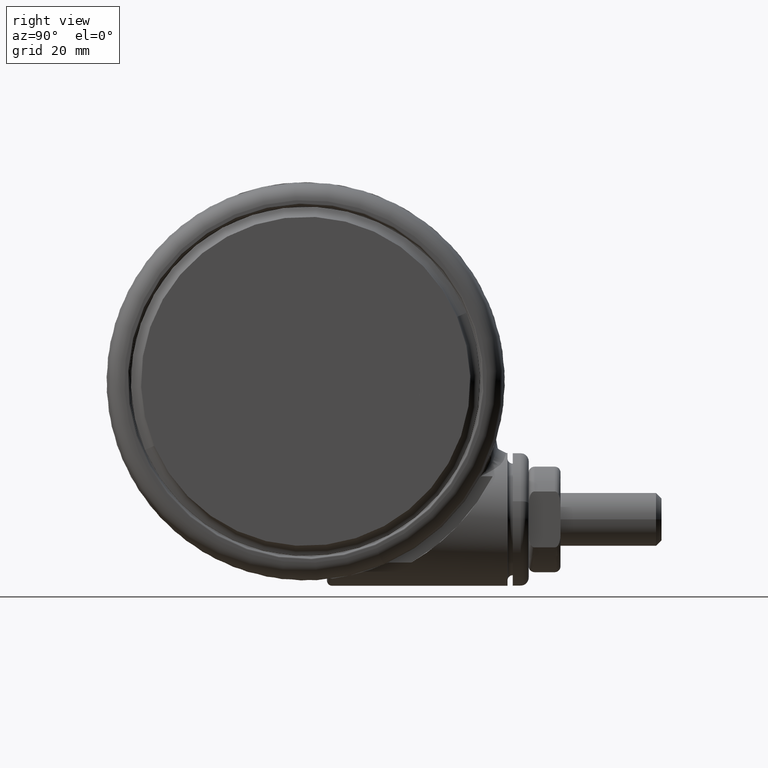
[diagram: clean part render]
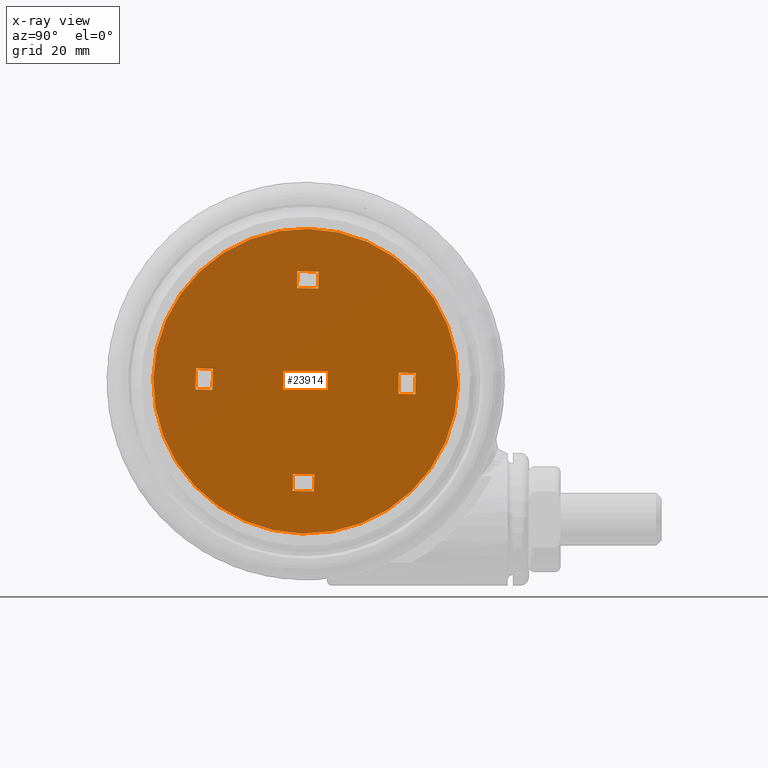
[diagram: x-ray — body ghosted, one internal face saturated and labeled with its STEP entity id]
A machine part, right view, then the same camera in x-ray: the body is ghosted and one INTERNAL B-rep face — a face not visible from any outside direction — is saturated and labeled: STEP entity #23914.
In plain terms, the highlighted planar face has unit normal (-1, 0, 0).
Its self-contained STEP definition (entity closure, byte-faithful):
#270 = FACE_BOUND ( 'NONE', #7125, .T. ) ;
#756 = VECTOR ( 'NONE', #2715, 1000.000000000000100 ) ;
#886 = DIRECTION ( 'NONE',  ( 0.4119530739487650100, 0.9112050619175484600, 0.0000000000000000000 ) ) ;
#963 = DIRECTION ( 'NONE',  ( -0.4119530739487678500, -0.9112050619175471300, 0.0000000000000000000 ) ) ;
#1714 = FACE_BOUND ( 'NONE', #34620, .T. ) ;
#1766 = EDGE_CURVE ( 'NONE', #53484, #48081, #2220, .T. ) ;
#2220 = LINE ( 'NONE', #38142, #47058 ) ;
#2500 = LINE ( 'NONE', #56258, #24878 ) ;
#2518 = CARTESIAN_POINT ( 'NONE',  ( 18.77464586767321500, -6.293065432955616600, -46.19999999999985400 ) ) ;
#2715 = DIRECTION ( 'NONE',  ( -0.9112050619175485800, 0.4119530739487646800, 0.0000000000000000000 ) ) ;
#2999 = ORIENTED_EDGE ( 'NONE', *, *, #25783, .T. ) ;
#4928 = CARTESIAN_POINT ( 'NONE',  ( -2.081668171172168500E-014, -4.163336342344337000E-014, -46.19999999999985400 ) ) ;
#5888 = EDGE_CURVE ( 'NONE', #15767, #36712, #53848, .T. ) ;
#6678 = VECTOR ( 'NONE', #29904, 1000.000000000000100 ) ;
#6944 = DIRECTION ( 'NONE',  ( -0.9112050619175485800, 0.4119530739487646800, 0.0000000000000000000 ) ) ;
#6985 = LINE ( 'NONE', #24503, #29391 ) ;
#7125 = EDGE_LOOP ( 'NONE', ( #48325, #25390, #19358, #2999 ) ) ;
#7928 = CARTESIAN_POINT ( 'NONE',  ( -11.82305322232957500, -26.15158527703368600, -46.19999999999985400 ) ) ;
#8159 = VECTOR ( 'NONE', #23845, 1000.000000000000100 ) ;
#8703 = EDGE_LOOP ( 'NONE', ( #55775, #50479, #37197, #31024 ) ) ;
#8927 = VECTOR ( 'NONE', #21891, 1000.000000000000100 ) ;
#8977 = VERTEX_POINT ( 'NONE', #49196 ) ;
#9422 = DIRECTION ( 'NONE',  ( 0.4119530739487650100, 0.9112050619175484600, 0.0000000000000000000 ) ) ;
#9743 = VECTOR ( 'NONE', #23494, 1000.000000000000100 ) ;
#10176 = EDGE_CURVE ( 'NONE', #56504, #13779, #40125, .T. ) ;
#10197 = CARTESIAN_POINT ( 'NONE',  ( 5.386768670268434500, 16.76999473145451700, -46.19999999999985400 ) ) ;
#11004 = ORIENTED_EDGE ( 'NONE', *, *, #31274, .T. ) ;
#11280 = CARTESIAN_POINT ( 'NONE',  ( 15.12218243565955200, -9.031588917938528000, -46.19999999999985400 ) ) ;
#11541 = EDGE_CURVE ( 'NONE', #15500, #36712, #42414, .T. ) ;
#11754 = LINE ( 'NONE', #12873, #8927 ) ;
#11943 = VECTOR ( 'NONE', #20105, 1000.000000000000100 ) ;
#12219 = FACE_BOUND ( 'NONE', #20004, .T. ) ;
#12732 = CARTESIAN_POINT ( 'NONE',  ( 6.705018506904514700, 19.68585092959065400, -46.19999999999985400 ) ) ;
#12873 = CARTESIAN_POINT ( 'NONE',  ( -18.03803863379574300, 10.34983875457449200, -46.19999999999985400 ) ) ;
#13212 = EDGE_CURVE ( 'NONE', #45808, #57971, #47139, .T. ) ;
#13779 = VERTEX_POINT ( 'NONE', #7928 ) ;
#13888 = VERTEX_POINT ( 'NONE', #44500 ) ;
#15012 = CARTESIAN_POINT ( 'NONE',  ( 10.34983875457470900, 18.03803863379559000, -46.19999999999985400 ) ) ;
#15325 = AXIS2_PLACEMENT_3D ( 'NONE', #4928, #36215, #9422 ) ;
#15500 = VERTEX_POINT ( 'NONE', #37248 ) ;
#15623 = ORIENTED_EDGE ( 'NONE', *, *, #58083, .F. ) ;
#15767 = VERTEX_POINT ( 'NONE', #57756 ) ;
#15917 = ORIENTED_EDGE ( 'NONE', *, *, #52695, .F. ) ;
#16519 = EDGE_CURVE ( 'NONE', #15767, #18680, #11754, .T. ) ;
#16743 = VERTEX_POINT ( 'NONE', #15012 ) ;
#17671 = LINE ( 'NONE', #54581, #51988 ) ;
#18080 = CARTESIAN_POINT ( 'NONE',  ( 5.386768670268434500, 16.76999473145451700, -46.19999999999985400 ) ) ;
#18655 = LINE ( 'NONE', #19346, #8159 ) ;
#18680 = VERTEX_POINT ( 'NONE', #26690 ) ;
#19346 = CARTESIAN_POINT ( 'NONE',  ( -5.386768670268367000, -16.76999473145464800, -46.19999999999985400 ) ) ;
#19358 = ORIENTED_EDGE ( 'NONE', *, *, #13212, .F. ) ;
#19760 = VECTOR ( 'NONE', #56149, 1000.000000000000100 ) ;
#20004 = EDGE_LOOP ( 'NONE', ( #35195, #26978, #15623, #37331 ) ) ;
#20098 = LINE ( 'NONE', #55224, #31980 ) ;
#20105 = DIRECTION ( 'NONE',  ( -0.9112050619175470200, 0.4119530739487681800, -0.0000000000000000000 ) ) ;
#20973 = EDGE_CURVE ( 'NONE', #23677, #33117, #33541, .T. ) ;
#21736 = CARTESIAN_POINT ( 'NONE',  ( 10.34983875457470900, 18.03803863379559000, -46.19999999999985400 ) ) ;
#21891 = DIRECTION ( 'NONE',  ( 0.4119530739487650100, 0.9112050619175484600, -0.0000000000000000000 ) ) ;
#23494 = DIRECTION ( 'NONE',  ( -0.9112050619175442500, 0.4119530739487745600, -0.0000000000000000000 ) ) ;
#23677 = VERTEX_POINT ( 'NONE', #28202 ) ;
#23845 = DIRECTION ( 'NONE',  ( 0.9112050619175470200, -0.4119530739487681800, -0.0000000000000000000 ) ) ;
#23914 = ADVANCED_FACE ( 'NONE', ( #25511, #12219, #1714, #270, #46537 ), #52640, .F. ) ;
#23919 = DIRECTION ( 'NONE',  ( 0.4119530739487742300, 0.9112050619175443600, 0.0000000000000000000 ) ) ;
#23964 = CARTESIAN_POINT ( 'NONE',  ( -5.386768670268367000, -16.76999473145464800, -46.19999999999985400 ) ) ;
#23972 = EDGE_CURVE ( 'NONE', #44358, #16743, #31798, .T. ) ;
#24503 = CARTESIAN_POINT ( 'NONE',  ( 17.12683357187815500, -9.937885680625809600, -46.19999999999985400 ) ) ;
#24683 = DIRECTION ( 'NONE',  ( 0.9112050619175485800, -0.4119530739487646800, 0.0000000000000000000 ) ) ;
#24758 = CARTESIAN_POINT ( 'NONE',  ( -10.34983875457461800, -18.03803863379573600, -46.19999999999985400 ) ) ;
#24878 = VECTOR ( 'NONE', #6944, 1000.000000000000100 ) ;
#24969 = EDGE_CURVE ( 'NONE', #13779, #56504, #43619, .T. ) ;
#25025 = ORIENTED_EDGE ( 'NONE', *, *, #43277, .F. ) ;
#25390 = ORIENTED_EDGE ( 'NONE', *, *, #57486, .T. ) ;
#25511 = FACE_OUTER_BOUND ( 'NONE', #35321, .T. ) ;
#25599 = CARTESIAN_POINT ( 'NONE',  ( -6.293065432955654800, -18.77464586767325000, -46.19999999999985400 ) ) ;
#25783 = EDGE_CURVE ( 'NONE', #45808, #8977, #35724, .T. ) ;
#25812 = DIRECTION ( 'NONE',  ( 0.0000000000000000000, 0.0000000000000000000, -1.000000000000000000 ) ) ;
#26690 = CARTESIAN_POINT ( 'NONE',  ( -18.03803863379574300, 10.34983875457449200, -46.19999999999985400 ) ) ;
#26978 = ORIENTED_EDGE ( 'NONE', *, *, #16519, .T. ) ;
#26991 = CARTESIAN_POINT ( 'NONE',  ( -9.031588917938561800, -15.12218243565958900, -46.19999999999985400 ) ) ;
#27088 = ORIENTED_EDGE ( 'NONE', *, *, #1766, .T. ) ;
#27698 = DIRECTION ( 'NONE',  ( -0.0000000000000000000, -0.0000000000000000000, 1.000000000000000000 ) ) ;
#28202 = CARTESIAN_POINT ( 'NONE',  ( 9.031588917938629300, 15.12218243565945600, -46.19999999999985400 ) ) ;
#28941 = DIRECTION ( 'NONE',  ( 0.9112050619175485800, -0.4119530739487646800, 0.0000000000000000000 ) ) ;
#29391 = VECTOR ( 'NONE', #24683, 1000.000000000000100 ) ;
#29684 = VERTEX_POINT ( 'NONE', #26991 ) ;
#29861 = CARTESIAN_POINT ( 'NONE',  ( 6.293065432955740100, 18.77464586767311200, -46.19999999999985400 ) ) ;
#29871 = AXIS2_PLACEMENT_3D ( 'NONE', #47967, #25812, #57146 ) ;
#29904 = DIRECTION ( 'NONE',  ( -0.4119530739487650100, -0.9112050619175484600, -0.0000000000000000000 ) ) ;
#30058 = VECTOR ( 'NONE', #28941, 1000.000000000000100 ) ;
#30302 = DIRECTION ( 'NONE',  ( 0.4119530739487678500, 0.9112050619175471300, 0.0000000000000000000 ) ) ;
#31024 = ORIENTED_EDGE ( 'NONE', *, *, #23972, .T. ) ;
#31070 = EDGE_CURVE ( 'NONE', #29684, #8977, #17671, .T. ) ;
#31274 = EDGE_CURVE ( 'NONE', #13888, #40494, #54052, .T. ) ;
#31798 = LINE ( 'NONE', #21736, #55614 ) ;
#31980 = VECTOR ( 'NONE', #23919, 1000.000000000000100 ) ;
#32567 = CARTESIAN_POINT ( 'NONE',  ( 11.82305322232953600, 26.15158527703360400, -46.19999999999985400 ) ) ;
#33117 = VERTEX_POINT ( 'NONE', #18080 ) ;
#33541 = LINE ( 'NONE', #10197, #9743 ) ;
#33650 = LINE ( 'NONE', #29861, #50433 ) ;
#33798 = VECTOR ( 'NONE', #30302, 1000.000000000000100 ) ;
#34154 = DIRECTION ( 'NONE',  ( -0.4119530739487742300, -0.9112050619175443600, 0.0000000000000000000 ) ) ;
#34620 = EDGE_LOOP ( 'NONE', ( #25025, #11004, #15917, #27088 ) ) ;
#35195 = ORIENTED_EDGE ( 'NONE', *, *, #5888, .F. ) ;
#35321 = EDGE_LOOP ( 'NONE', ( #56959, #39720 ) ) ;
#35724 = LINE ( 'NONE', #24758, #11943 ) ;
#36215 = DIRECTION ( 'NONE',  ( -0.0000000000000000000, -0.0000000000000000000, 1.000000000000000000 ) ) ;
#36484 = LINE ( 'NONE', #2518, #756 ) ;
#36712 = VERTEX_POINT ( 'NONE', #44575 ) ;
#37153 = AXIS2_PLACEMENT_3D ( 'NONE', #54510, #27698, #886 ) ;
#37197 = ORIENTED_EDGE ( 'NONE', *, *, #52189, .F. ) ;
#37248 = CARTESIAN_POINT ( 'NONE',  ( -15.12218243565959200, 9.031588917938444500, -46.19999999999985400 ) ) ;
#37331 = ORIENTED_EDGE ( 'NONE', *, *, #11541, .T. ) ;
#37398 = DIRECTION ( 'NONE',  ( 0.4119530739487650100, 0.9112050619175484600, -0.0000000000000000000 ) ) ;
#38142 = CARTESIAN_POINT ( 'NONE',  ( 16.76999473145461300, -5.386768670268334200, -46.19999999999985400 ) ) ;
#39720 = ORIENTED_EDGE ( 'NONE', *, *, #24969, .T. ) ;
#39992 = EDGE_CURVE ( 'NONE', #23677, #16743, #20098, .T. ) ;
#40125 = CIRCLE ( 'NONE', #37153, 28.70000000000000300 ) ;
#40494 = VERTEX_POINT ( 'NONE', #55934 ) ;
#42414 = LINE ( 'NONE', #56724, #6678 ) ;
#42852 = CARTESIAN_POINT ( 'NONE',  ( 18.03803863379570400, -10.34983875457457500, -46.19999999999985400 ) ) ;
#43277 = EDGE_CURVE ( 'NONE', #13888, #48081, #36484, .T. ) ;
#43619 = CIRCLE ( 'NONE', #15325, 28.70000000000000300 ) ;
#44358 = VERTEX_POINT ( 'NONE', #12732 ) ;
#44500 = CARTESIAN_POINT ( 'NONE',  ( 19.68585092959076400, -6.705018506904381500, -46.19999999999985400 ) ) ;
#44575 = CARTESIAN_POINT ( 'NONE',  ( -16.76999473145465200, 5.386768670268250700, -46.19999999999985400 ) ) ;
#45808 = VERTEX_POINT ( 'NONE', #49496 ) ;
#46537 = FACE_BOUND ( 'NONE', #8703, .T. ) ;
#47058 = VECTOR ( 'NONE', #37398, 1000.000000000000100 ) ;
#47139 = LINE ( 'NONE', #25599, #33798 ) ;
#47967 = CARTESIAN_POINT ( 'NONE',  ( -2.081668171172168500E-014, -4.163336342344337000E-014, -46.19999999999985400 ) ) ;
#48081 = VERTEX_POINT ( 'NONE', #50957 ) ;
#48325 = ORIENTED_EDGE ( 'NONE', *, *, #31070, .F. ) ;
#48343 = DIRECTION ( 'NONE',  ( 0.9112050619175442500, -0.4119530739487745600, -0.0000000000000000000 ) ) ;
#49196 = CARTESIAN_POINT ( 'NONE',  ( -10.34983875457461800, -18.03803863379573600, -46.19999999999985400 ) ) ;
#49496 = CARTESIAN_POINT ( 'NONE',  ( -6.705018506904424100, -19.68585092959079900, -46.19999999999985400 ) ) ;
#50433 = VECTOR ( 'NONE', #34154, 1000.000000000000100 ) ;
#50479 = ORIENTED_EDGE ( 'NONE', *, *, #20973, .T. ) ;
#50957 = CARTESIAN_POINT ( 'NONE',  ( 16.76999473145461300, -5.386768670268334200, -46.19999999999985400 ) ) ;
#51988 = VECTOR ( 'NONE', #963, 1000.000000000000100 ) ;
#52189 = EDGE_CURVE ( 'NONE', #44358, #33117, #33650, .T. ) ;
#52640 = PLANE ( 'NONE',  #29871 ) ;
#52695 = EDGE_CURVE ( 'NONE', #53484, #40494, #6985, .T. ) ;
#53484 = VERTEX_POINT ( 'NONE', #11280 ) ;
#53848 = LINE ( 'NONE', #55734, #30058 ) ;
#54052 = LINE ( 'NONE', #42852, #19760 ) ;
#54510 = CARTESIAN_POINT ( 'NONE',  ( -2.081668171172168500E-014, -4.163336342344337000E-014, -46.19999999999985400 ) ) ;
#54581 = CARTESIAN_POINT ( 'NONE',  ( -9.937885680625848700, -17.12683357187818700, -46.19999999999985400 ) ) ;
#55224 = CARTESIAN_POINT ( 'NONE',  ( 9.937885680625933900, 17.12683357187804800, -46.19999999999985400 ) ) ;
#55614 = VECTOR ( 'NONE', #48343, 1000.000000000000100 ) ;
#55734 = CARTESIAN_POINT ( 'NONE',  ( -18.77464586767325700, 6.293065432955533100, -46.19999999999985400 ) ) ;
#55775 = ORIENTED_EDGE ( 'NONE', *, *, #39992, .F. ) ;
#55934 = CARTESIAN_POINT ( 'NONE',  ( 18.03803863379570400, -10.34983875457457500, -46.19999999999985400 ) ) ;
#56149 = DIRECTION ( 'NONE',  ( -0.4119530739487650100, -0.9112050619175484600, -0.0000000000000000000 ) ) ;
#56258 = CARTESIAN_POINT ( 'NONE',  ( -17.12683357187819400, 9.937885680625726100, -46.19999999999985400 ) ) ;
#56504 = VERTEX_POINT ( 'NONE', #32567 ) ;
#56724 = CARTESIAN_POINT ( 'NONE',  ( -16.76999473145465200, 5.386768670268250700, -46.19999999999985400 ) ) ;
#56959 = ORIENTED_EDGE ( 'NONE', *, *, #10176, .T. ) ;
#57146 = DIRECTION ( 'NONE',  ( 0.4119530739487650100, 0.9112050619175484600, 0.0000000000000000000 ) ) ;
#57486 = EDGE_CURVE ( 'NONE', #29684, #57971, #18655, .T. ) ;
#57756 = CARTESIAN_POINT ( 'NONE',  ( -19.68585092959080600, 6.705018506904298000, -46.19999999999985400 ) ) ;
#57971 = VERTEX_POINT ( 'NONE', #23964 ) ;
#58083 = EDGE_CURVE ( 'NONE', #15500, #18680, #2500, .T. ) ;